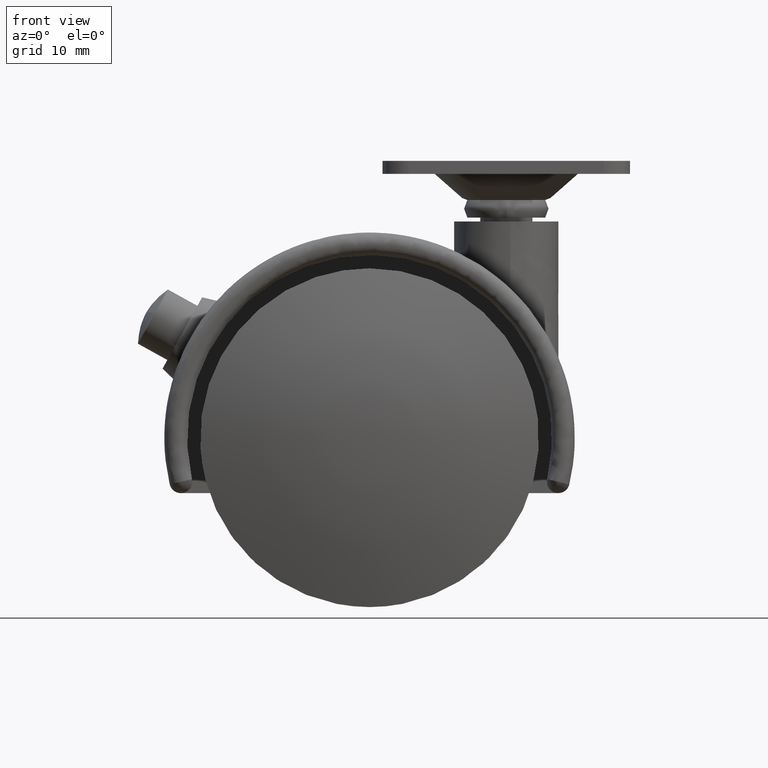
[diagram: clean part render]
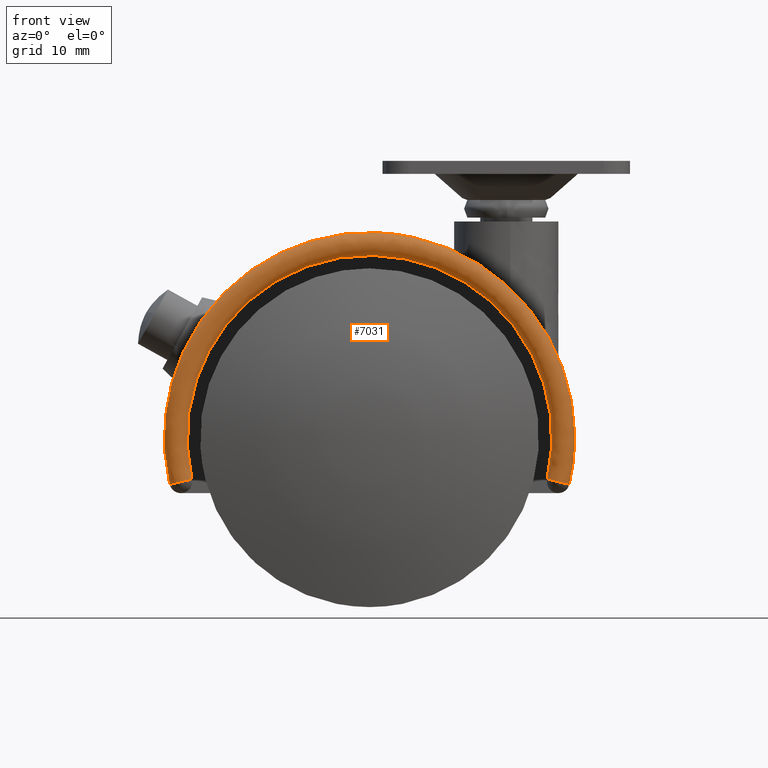
[diagram: same view with one face highlighted and labeled with its STEP entity id]
A machine part, front view. The second image highlights one B-rep face of the part: STEP entity #7031.
In plain terms, the highlighted face is a freeform B-spline surface patch.
Its self-contained STEP definition (entity closure, byte-faithful):
#6903=CARTESIAN_POINT('',(-27.269766013083149,-17.100000000000001,-6.352941176470590));
#6904=VERTEX_POINT('',#6903);
#6905=CARTESIAN_POINT('',(-30.678486764718549,-17.100000000000001,-7.147058823529410));
#6906=VERTEX_POINT('',#6905);
#6907=CARTESIAN_POINT('',(-27.269766013083149,-17.100000000000001,-6.352941176470587));
#6908=CARTESIAN_POINT('',(-27.269766013083157,-18.850000000000001,-6.352941176470586));
#6909=CARTESIAN_POINT('',(-28.974126388900849,-18.850000000000001,-6.750000000000000));
#6910=CARTESIAN_POINT('',(-30.678486764718549,-18.850000000000001,-7.147058823529414));
#6911=CARTESIAN_POINT('',(-30.678486764718539,-17.100000000000001,-7.147058823529413));
#6919=(BOUNDED_CURVE()B_SPLINE_CURVE(2,(#6907,#6908,#6909,#6910,#6911),.UNSPECIFIED.,.F.,.U.)B_SPLINE_CURVE_WITH_KNOTS((3,2,3),(0.0,0.500000000000000,1.0),.UNSPECIFIED.)CURVE()GEOMETRIC_REPRESENTATION_ITEM()RATIONAL_B_SPLINE_CURVE((1.0,0.707106781186547,1.0,0.707106781186547,1.0))REPRESENTATION_ITEM(''));
#6920=EDGE_CURVE('',#6904,#6906,#6919,.T.);
#6942=CARTESIAN_POINT('',(29.430086460112978,-16.852832165797366,-11.181016247803095));
#6943=CARTESIAN_POINT('',(45.638703135949825,-16.852832165797363,31.482457232296241));
#6944=CARTESIAN_POINT('',(0.0,-16.852832165797366,31.482457232296237));
#6945=CARTESIAN_POINT('',(-45.638703135949825,-16.852832165797363,31.482457232296241));
#6946=CARTESIAN_POINT('',(-29.430086460112978,-16.852832165797366,-11.181016247803095));
#6947=CARTESIAN_POINT('',(29.698141851580552,-18.862721756905373,-11.282855285597710));
#6948=CARTESIAN_POINT('',(46.054390002917053,-18.862721756905366,31.769206046615952));
#6949=CARTESIAN_POINT('',(0.0,-18.862721756905373,31.769206046615967));
#6950=CARTESIAN_POINT('',(-46.054390002917053,-18.862721756905366,31.769206046615952));
#6951=CARTESIAN_POINT('',(-29.698141851580552,-18.862721756905373,-11.282855285597710));
#6952=CARTESIAN_POINT('',(27.800291036932059,-18.849965456498239,-10.561827815180640));
#6953=CARTESIAN_POINT('',(43.111298074068870,-18.849965456498236,29.739004498060257));
#6954=CARTESIAN_POINT('',(0.0,-18.849965456498239,29.739004498060261));
#6955=CARTESIAN_POINT('',(-43.111298074068870,-18.849965456498236,29.739004498060257));
#6956=CARTESIAN_POINT('',(-27.800291036932059,-18.849965456498239,-10.561827815180640));
#6957=CARTESIAN_POINT('',(25.925038621418715,-18.837361049994406,-9.849385880801549));
#6958=CARTESIAN_POINT('',(40.203250610036449,-18.837361049994399,27.732977296911073));
#6959=CARTESIAN_POINT('',(0.0,-18.837361049994406,27.732977296911077));
#6960=CARTESIAN_POINT('',(-40.203250610036449,-18.837361049994399,27.732977296911073));
#6961=CARTESIAN_POINT('',(-25.925038621418715,-18.837361049994406,-9.849385880801549));
#6962=CARTESIAN_POINT('',(26.191217065874046,-16.851605128350823,-9.950511832854170));
#6963=CARTESIAN_POINT('',(40.616026801643976,-16.851605128350819,28.017718271256555));
#6964=CARTESIAN_POINT('',(0.0,-16.851605128350823,28.017718271256541));
#6965=CARTESIAN_POINT('',(-40.616026801643976,-16.851605128350819,28.017718271256555));
#6966=CARTESIAN_POINT('',(-26.191217065874046,-16.851605128350823,-9.950511832854170));
#6974=(BOUNDED_SURFACE()B_SPLINE_SURFACE(2,2,((#6942,#6947,#6952,#6957,#6962),(#6943,#6948,#6953,#6958,#6963),(#6944,#6949,#6954,#6959,#6964),(#6945,#6950,#6955,#6960,#6965),(#6946,#6951,#6956,#6961,#6966)),.UNSPECIFIED.,.F.,.F.,.U.)B_SPLINE_SURFACE_WITH_KNOTS((3,2,3),(3,2,3),(0.0,66.116516624095979,132.233033248191990),(0.0,3.207778064986509,6.390598302477793),.UNSPECIFIED.)GEOMETRIC_REPRESENTATION_ITEM()RATIONAL_B_SPLINE_SURFACE(((0.993268617861399,0.650693886555314,1.0,0.653411631220239,0.987979757204071),(0.564002251718915,0.369479927783382,0.567824495385010,0.371023129776329,0.560999107085006),(0.993268617861399,0.650693886555314,1.0,0.653411631220239,0.987979757204071),(0.564002251718915,0.369479927783382,0.567824495385010,0.371023129776329,0.560999107085006),(0.993268617861399,0.650693886555314,1.0,0.653411631220239,0.987979757204071)))REPRESENTATION_ITEM('')SURFACE());
#6975=ORIENTED_EDGE('',*,*,#6920,.F.);
#6976=CARTESIAN_POINT('',(27.269766013083149,-17.100000000000001,-6.352941176470590));
#6977=VERTEX_POINT('',#6976);
#6978=CARTESIAN_POINT('',(27.269766013083139,-17.100000000000001,-6.352941176470591));
#6979=CARTESIAN_POINT('',(31.615053142353418,-17.099999999999998,12.299043783461450));
#6980=CARTESIAN_POINT('',(15.807526571176719,-17.100000000000001,23.111081837541530));
#6981=CARTESIAN_POINT('',(1.387779E-014,-17.099999999999998,33.923119891621596));
#6982=CARTESIAN_POINT('',(-15.807526571176711,-17.100000000000001,23.111081837541541));
#6983=CARTESIAN_POINT('',(-31.615053142353418,-17.099999999999998,12.299043783461473));
#6984=CARTESIAN_POINT('',(-27.269766013083139,-17.100000000000001,-6.352941176470584));
#6992=(BOUNDED_CURVE()B_SPLINE_CURVE(2,(#6978,#6979,#6980,#6981,#6982,#6983,#6984),.UNSPECIFIED.,.F.,.U.)B_SPLINE_CURVE_WITH_KNOTS((3,2,2,3),(0.0,0.333333333333333,0.666666666666667,1.0),.UNSPECIFIED.)CURVE()GEOMETRIC_REPRESENTATION_ITEM()RATIONAL_B_SPLINE_CURVE((1.0,0.825395779912198,1.0,0.825395779912198,1.0,0.825395779912198,1.0))REPRESENTATION_ITEM(''));
#6993=EDGE_CURVE('',#6977,#6904,#6992,.T.);
#6994=ORIENTED_EDGE('',*,*,#6993,.F.);
#6995=CARTESIAN_POINT('',(30.678486764718549,-17.100000000000001,-7.147058823529410));
#6996=VERTEX_POINT('',#6995);
#6997=CARTESIAN_POINT('',(27.269766013083149,-17.100000000000001,-6.352941176470587));
#6998=CARTESIAN_POINT('',(27.269766013083157,-18.850000000000001,-6.352941176470586));
#6999=CARTESIAN_POINT('',(28.974126388900849,-18.850000000000001,-6.750000000000000));
#7000=CARTESIAN_POINT('',(30.678486764718549,-18.850000000000001,-7.147058823529414));
#7001=CARTESIAN_POINT('',(30.678486764718539,-17.100000000000001,-7.147058823529413));
#7009=(BOUNDED_CURVE()B_SPLINE_CURVE(2,(#6997,#6998,#6999,#7000,#7001),.UNSPECIFIED.,.F.,.U.)B_SPLINE_CURVE_WITH_KNOTS((3,2,3),(0.0,0.500000000000000,1.0),.UNSPECIFIED.)CURVE()GEOMETRIC_REPRESENTATION_ITEM()RATIONAL_B_SPLINE_CURVE((1.0,0.707106781186547,1.0,0.707106781186547,1.0))REPRESENTATION_ITEM(''));
#7010=EDGE_CURVE('',#6977,#6996,#7009,.T.);
#7011=ORIENTED_EDGE('',*,*,#7010,.T.);
#7012=CARTESIAN_POINT('',(-30.678486764718539,-17.100000000000001,-7.147058823529414));
#7013=CARTESIAN_POINT('',(-35.566934785147609,-17.100000000000001,13.836424256394128));
#7014=CARTESIAN_POINT('',(-17.783467392573812,-17.100000000000001,25.999967067234220));
#7015=CARTESIAN_POINT('',(-1.387779E-014,-17.100000000000001,38.163509878074308));
#7016=CARTESIAN_POINT('',(17.783467392573790,-17.100000000000001,25.999967067234230));
#7017=CARTESIAN_POINT('',(35.566934785147609,-17.100000000000001,13.836424256394151));
#7018=CARTESIAN_POINT('',(30.678486764718539,-17.100000000000001,-7.147058823529408));
#7026=(BOUNDED_CURVE()B_SPLINE_CURVE(2,(#7012,#7013,#7014,#7015,#7016,#7017,#7018),.UNSPECIFIED.,.F.,.U.)B_SPLINE_CURVE_WITH_KNOTS((3,2,2,3),(0.0,0.333333333333333,0.666666666666667,1.0),.UNSPECIFIED.)CURVE()GEOMETRIC_REPRESENTATION_ITEM()RATIONAL_B_SPLINE_CURVE((1.0,0.825395779912198,1.0,0.825395779912198,1.0,0.825395779912198,1.0))REPRESENTATION_ITEM(''));
#7027=EDGE_CURVE('',#6906,#6996,#7026,.T.);
#7028=ORIENTED_EDGE('',*,*,#7027,.F.);
#7029=EDGE_LOOP('',(#6975,#6994,#7011,#7028));
#7030=FACE_OUTER_BOUND('',#7029,.T.);
#7031=ADVANCED_FACE('',(#7030),#6974,.T.);